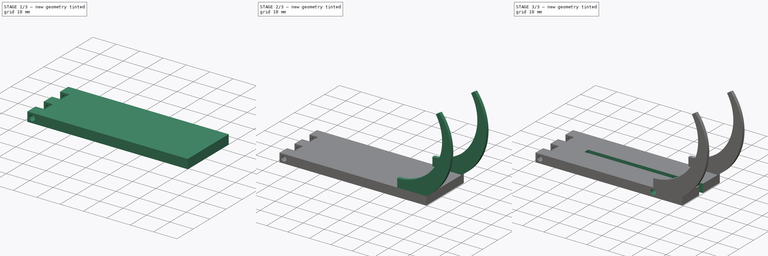
[diagram: build sequence overview — one tinted view per stage of 3, left to right]
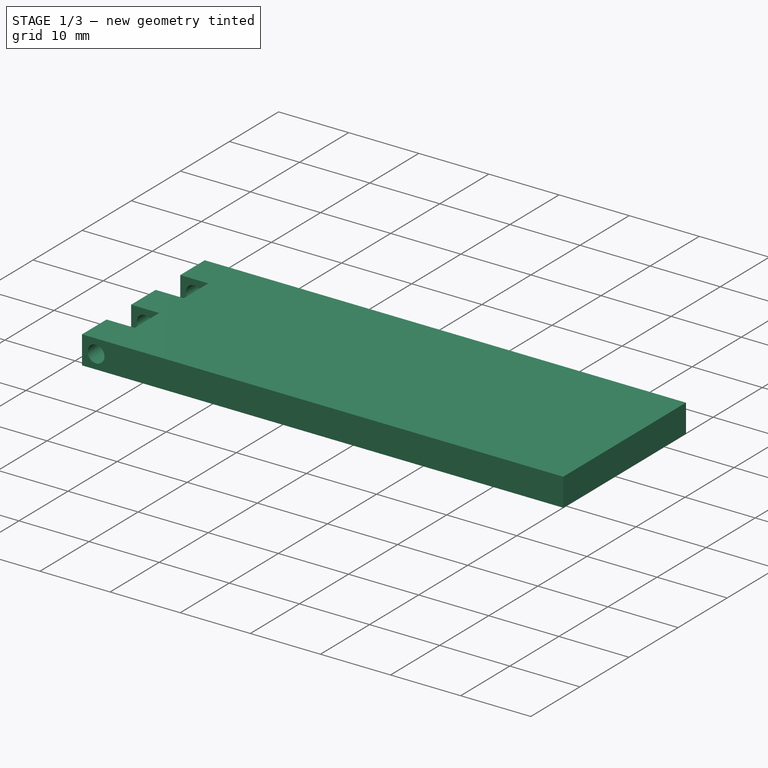
[diagram: stage 1 of 3 — iso view after this stage's code; geometry added in this stage tinted green]
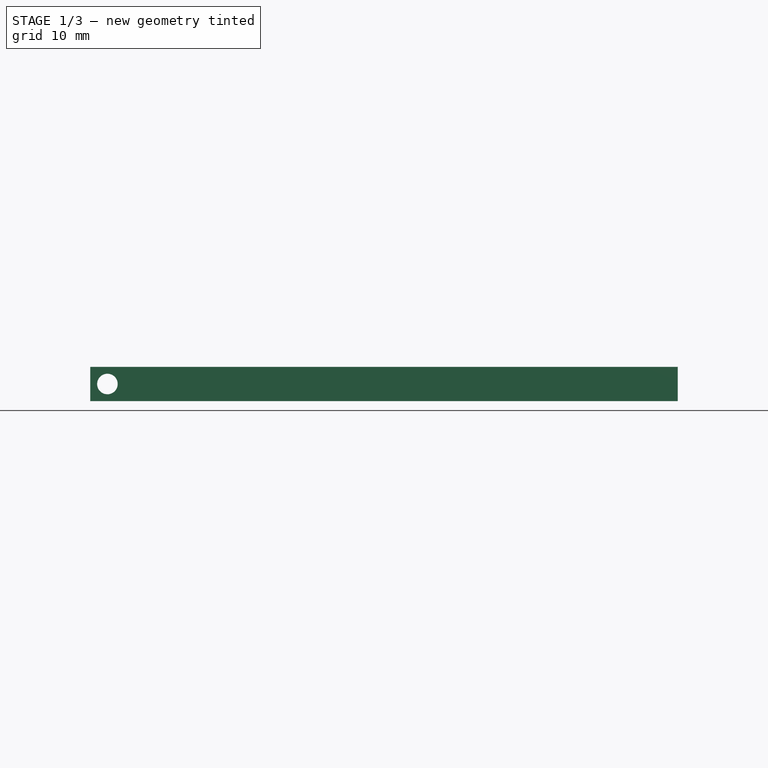
[diagram: stage 1 of 3 — front view after this stage's code; geometry added in this stage tinted green]
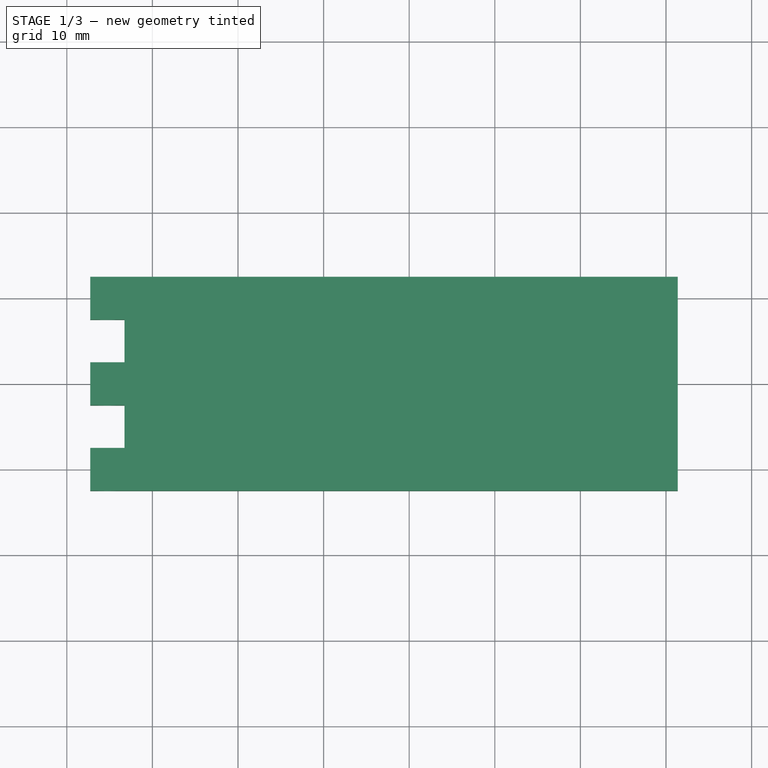
[diagram: stage 1 of 3 — top view after this stage's code; geometry added in this stage tinted green]
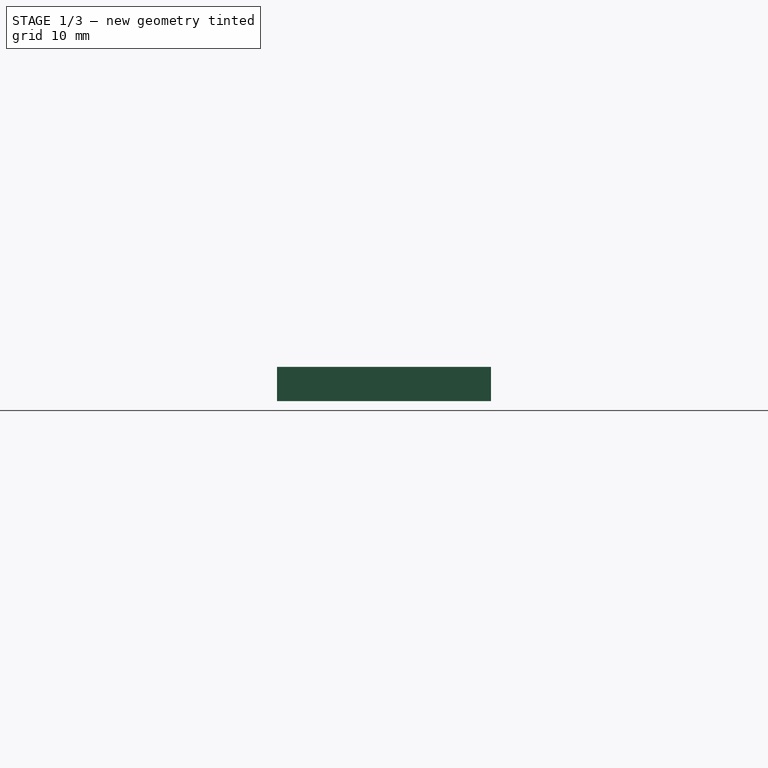
[diagram: stage 1 of 3 — right view after this stage's code; geometry added in this stage tinted green]
FCSTD DOCUMENT  (FreeCAD 0.16R6348 (Git))
Label: MainArm
License: All rights reserved
LicenseURL: http://en.wikipedia.org/wiki/All_rights_reserved
objects: Sketcher::SketchObject×5, PartDesign::Pocket×3, PartDesign::Pad×2, PartDesign::LinearPattern×1, Raytracing::LuxFeature×1, Raytracing::LuxProject×1
note: 16 computed .brp shape members not serialized (recipe doc carries the construction recipe); baked Part::Feature solids carry a one-line shape summary decoded from their .brp

FEATURE [Sketcher::SketchObject] Sketch
  sketch-geometry (12):
    g0: LineSegment StartX=41.3695 StartY=12.5 StartZ=0 EndX=-27.2564 EndY=12.5 EndZ=0
    g1: LineSegment StartX=-27.2564 StartY=12.5 StartZ=0 EndX=-27.2564 EndY=7.5 EndZ=0
    g2: LineSegment StartX=-27.2564 StartY=7.5 StartZ=0 EndX=-23.2564 EndY=7.5 EndZ=0
    g3: LineSegment StartX=-23.2564 StartY=7.5 StartZ=0 EndX=-23.2564 EndY=2.5 EndZ=0
    g4: LineSegment StartX=-23.2564 StartY=2.5 StartZ=0 EndX=-27.2564 EndY=2.5 EndZ=0
    g5: LineSegment StartX=-27.2564 StartY=2.5 StartZ=0 EndX=-27.2564 EndY=-2.5 EndZ=0
    g6: LineSegment StartX=-27.2564 StartY=-2.5 StartZ=0 EndX=-23.2564 EndY=-2.5 EndZ=0
    g7: LineSegment StartX=-23.2564 StartY=-2.5 StartZ=0 EndX=-23.2564 EndY=-7.5 EndZ=0
    g8: LineSegment StartX=-23.2564 StartY=-7.5 StartZ=0 EndX=-27.2564 EndY=-7.5 EndZ=0
    g9: LineSegment StartX=-27.2564 StartY=-7.5 StartZ=0 EndX=-27.2564 EndY=-12.5 EndZ=0
    g10: LineSegment StartX=-27.2564 StartY=-12.5 StartZ=0 EndX=41.3695 EndY=-12.5 EndZ=0
    g11: LineSegment StartX=41.3695 StartY=12.5 StartZ=0 EndX=41.3695 EndY=-12.5 EndZ=0
  constraints (34):
    c: Horizontal(g0)
    c: Coincident(g0,g1)
    c: Vertical(g1)
    c: Coincident(g1,g2)
    c: Horizontal(g2)
    c: Coincident(g2,g3)
    c: Vertical(g3)
    c: Coincident(g3,g4)
    c: Horizontal(g4)
    c: Coincident(g4,g5)
    c: Vertical(g5)
    c: Coincident(g5,g6)
    c: Horizontal(g6)
    c: Coincident(g6,g7)
    c: Vertical(g7)
    c: Coincident(g7,g8)
    c: Horizontal(g8)
    c: Coincident(g8,g9)
    c: Vertical(g9)
    c: Coincident(g9,g10)
    c: Horizontal(g10)
    c: Equal(g7,g5)
    c: Equal(g5,g9)
    c: Equal(g9,g3)
    c: Equal(g3,g1)
    c: Equal(g8,g6)
    c: Equal(g6,g4)
    c: Equal(g4,g2)
    c: DistanceY(g0,g9) = -25
    c: Symmetric(g5,g4,g-1)
    c: Coincident(g11,g0)
    c: Vertical(g11)
    c: Coincident(g10,g11)
    c: DistanceX(g6) = 4
FEATURE [PartDesign::Pad] Pad
  Length = 4
  Length2 = 100
  Sketch = -> Sketch
  Type = 0
FEATURE [Sketcher::SketchObject] Sketch001
  ExternalGeometry = -> [Pad]
  Placement = pos=(0,-12.5,0) rot=(1,0,0;1.5708rad)
  Support = -> Pad [Face11]
  sketch-geometry (1):
    g0: Circle CenterX=-25.2564 CenterY=2 CenterZ=0 NormalX=0 NormalY=0 NormalZ=1 Radius=1.2
  constraints (3):
    c: Radius(g0) = 1.2
    c: DistanceY(g-5,g0) = 2
    c: DistanceX(g-5,g0) = 2
FEATURE [PartDesign::Pocket] Pocket
  Length = 5
  Sketch = -> Sketch001
  Type = 1
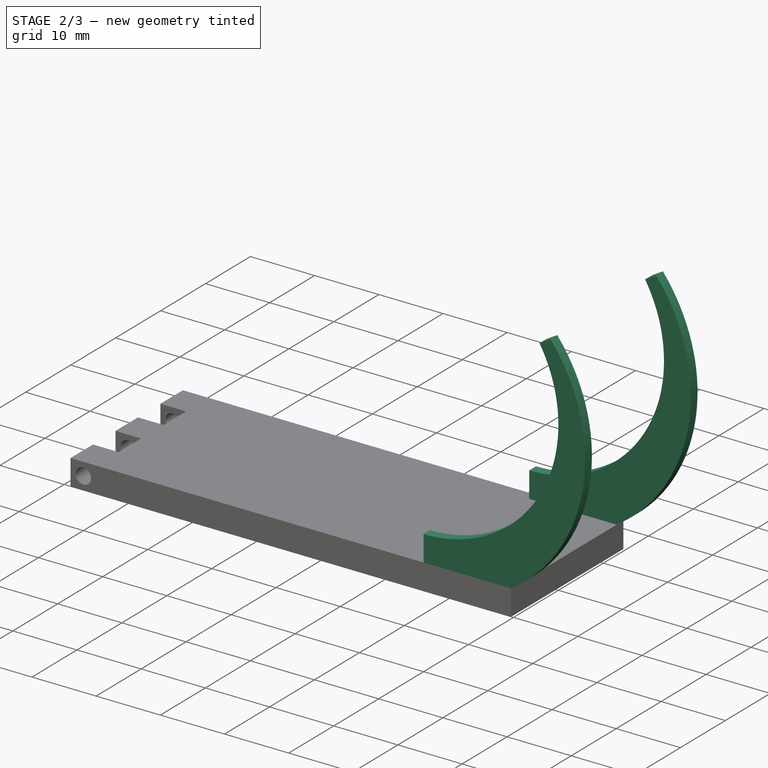
[diagram: stage 2 of 3 — iso view after this stage's code; geometry added in this stage tinted green]
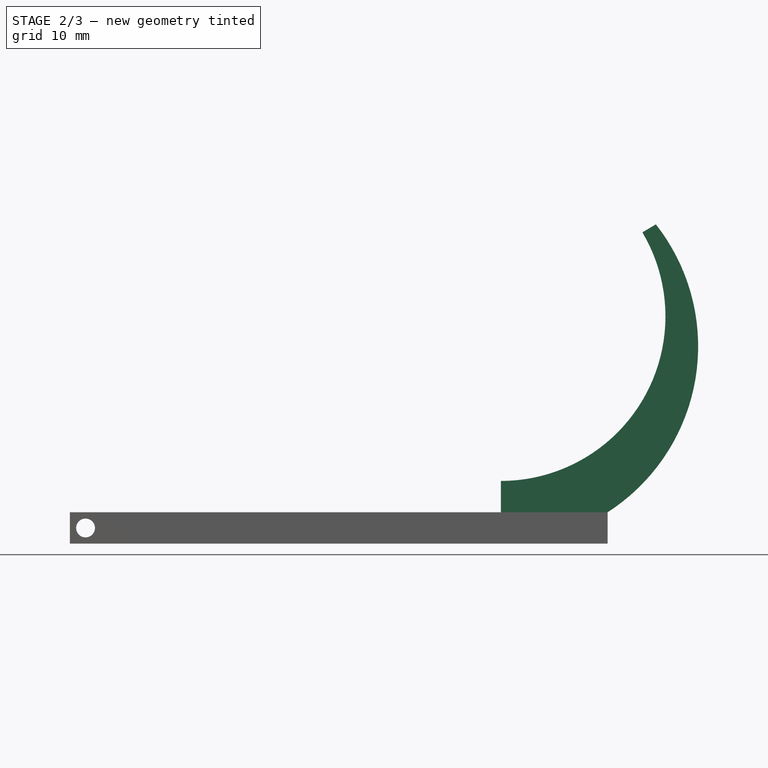
[diagram: stage 2 of 3 — front view after this stage's code; geometry added in this stage tinted green]
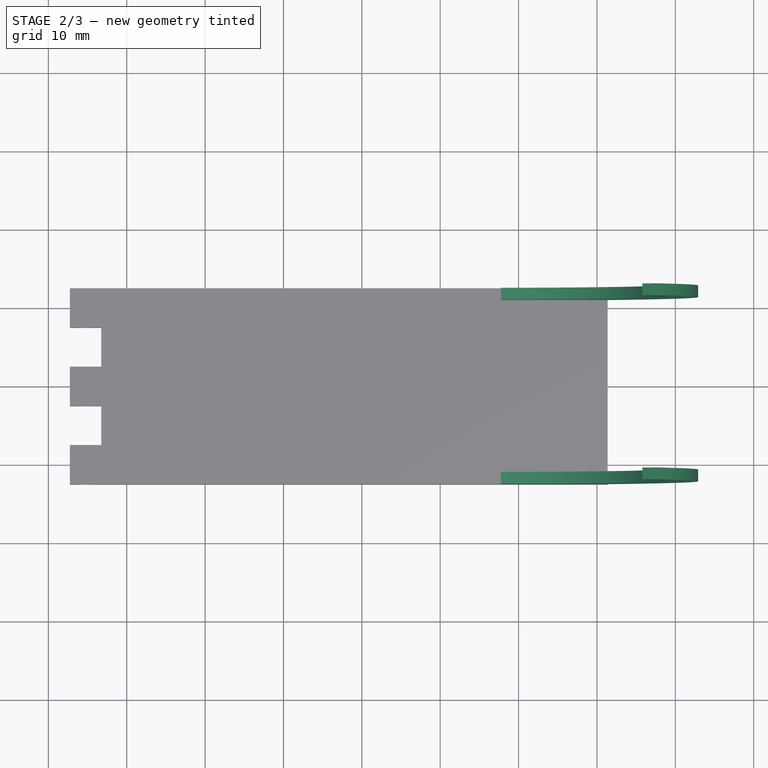
[diagram: stage 2 of 3 — top view after this stage's code; geometry added in this stage tinted green]
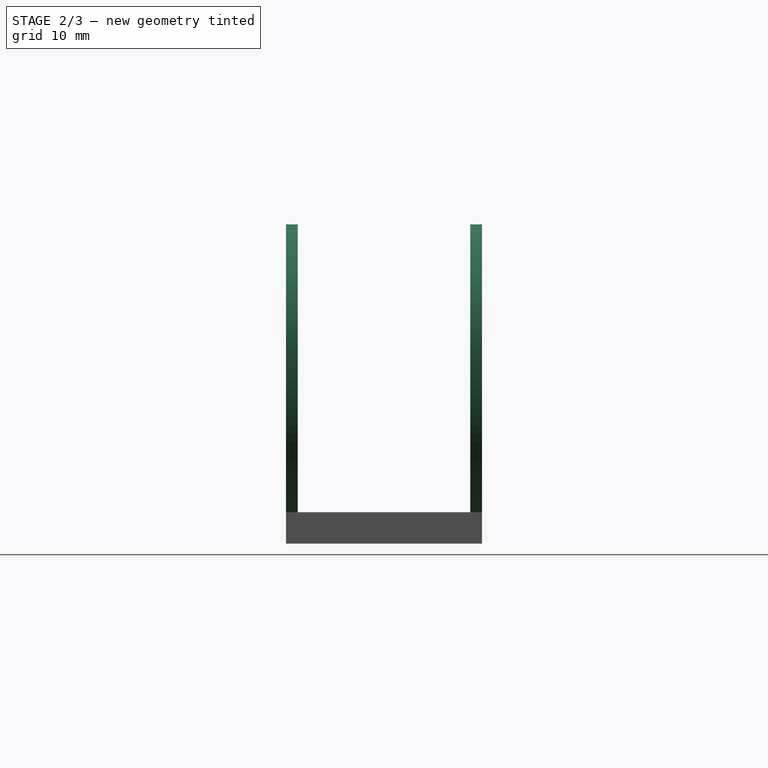
[diagram: stage 2 of 3 — right view after this stage's code; geometry added in this stage tinted green]
FEATURE [Sketcher::SketchObject] Sketch002
  ExternalGeometry = -> [Pocket]
  Placement = pos=(0,-12.5,0) rot=(1,0,0;1.5708rad)
  Support = -> Pocket [Face7]
  sketch-geometry (6):
    g0: LineSegment [constr] StartX=27.7436 StartY=51.229 StartZ=0 EndX=27.7436 EndY=4 EndZ=0
    g1: GeomPoint [constr] X=27.7436 Y=29 Z=0
    g2: ArcOfCircle CenterX=27.7436 CenterY=29 CenterZ=0 NormalX=0 NormalY=0 NormalZ=1 Radius=21 StartAngle=4.71239 EndAngle=6.81909
    g3: ArcOfCircle CenterX=27.7436 CenterY=25.1712 CenterZ=0 NormalX=0 NormalY=0 NormalZ=1 Radius=25.1712 StartAngle=4.71239 EndAngle=6.95025
    g4: LineSegment StartX=47.5193 StartY=40.7441 StartZ=0 EndX=45.7996 EndY=39.7229 EndZ=0
    g5: LineSegment StartX=27.7436 StartY=8 StartZ=0 EndX=27.7436 EndY=0 EndZ=0
  constraints (17):
    c: Vertical(g0)
    c: PointOnObject(g0,g-3)
    c: PointOnObject(g1,g0)
    c: DistanceY(g1,g0) = -25
    c: Coincident(g2,g1)
    c: Radius(g2) = 21
    c: PointOnObject(g3,g0)
    c: PointOnObject(g3,g-5)
    c: DistanceX(g3,g0) = 0
    c: PointOnObject(g2,g0)
    c: Coincident(g4,g3)
    c: Coincident(g4,g2)
    c: Coincident(g5,g2)
    c: Coincident(g5,g3)
    c: DistanceX(g-5,g0) = 55
    c: PointOnObject(g1,g4)
    c: Distance(g4) = 2
FEATURE [PartDesign::Pad] Pad001
  Length = 1.5
  Length2 = 100
  Reversed = true
  Sketch = -> Sketch002
  Type = 0
FEATURE [PartDesign::LinearPattern] LinearPattern
  Direction = -> Pad001 [Edge25]
  Length = 23.5
  Occurrences = 2
  Originals = -> [Pad001]
  Reversed = true
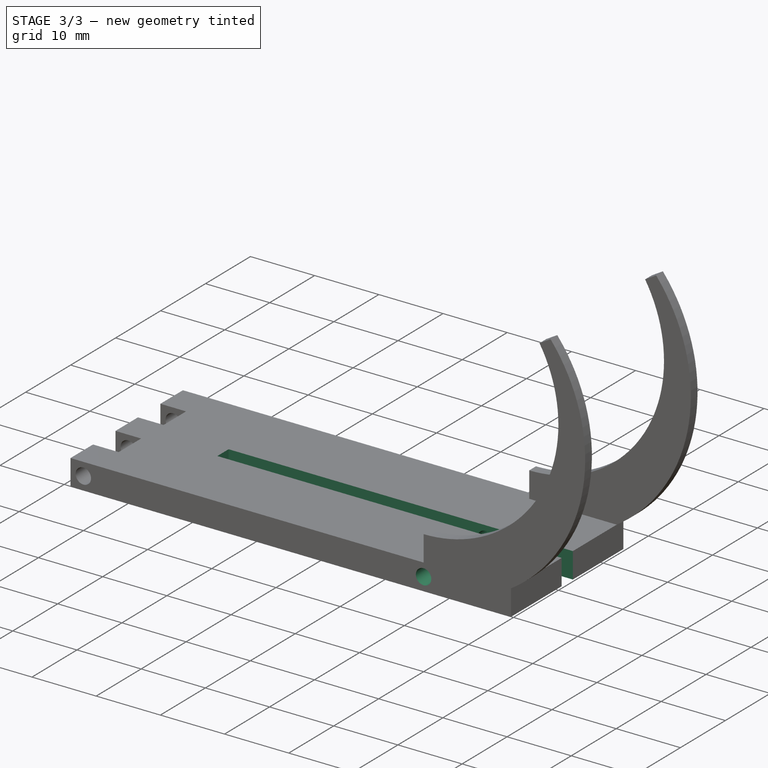
[diagram: stage 3 of 3 — iso view after this stage's code; geometry added in this stage tinted green]
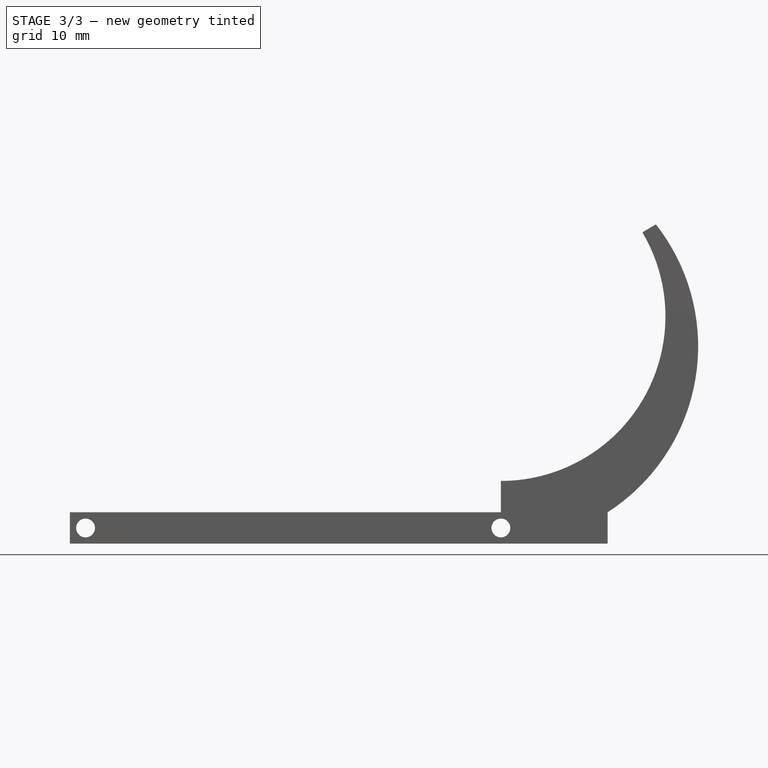
[diagram: stage 3 of 3 — front view after this stage's code; geometry added in this stage tinted green]
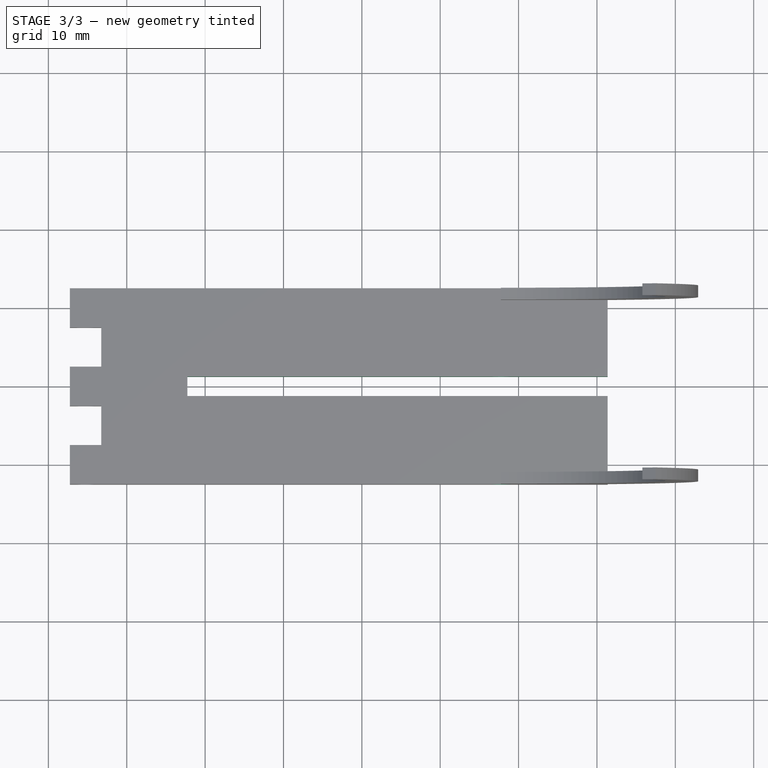
[diagram: stage 3 of 3 — top view after this stage's code; geometry added in this stage tinted green]
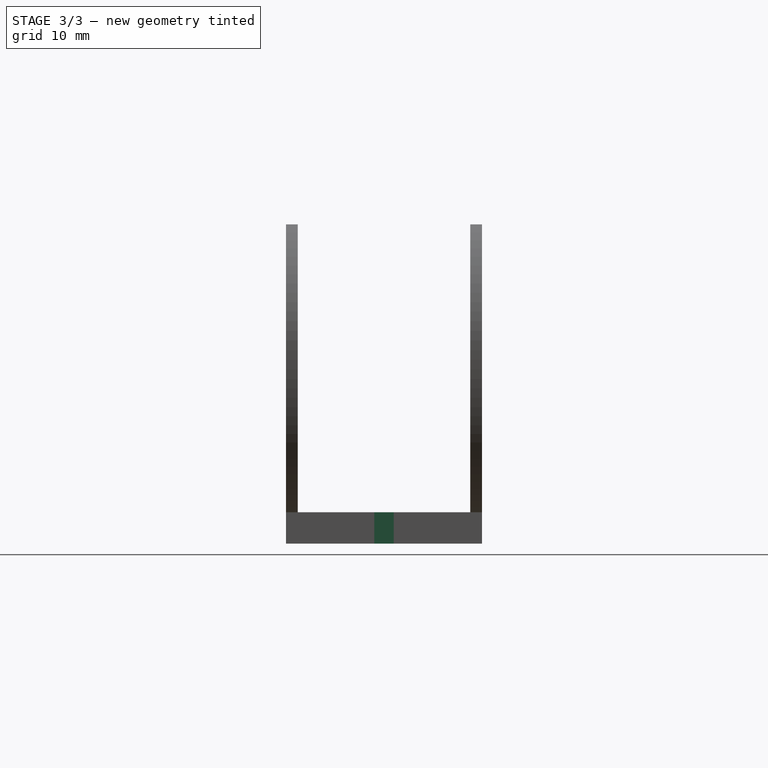
[diagram: stage 3 of 3 — right view after this stage's code; geometry added in this stage tinted green]
FEATURE [Sketcher::SketchObject] Sketch003
  ExternalGeometry = -> [LinearPattern]
  Placement = pos=(0,12.5,0) rot=(0,0.707107,0.707107;3.14159rad)
  Support = -> LinearPattern [Face8]
  sketch-geometry (1):
    g0: Circle CenterX=-27.7436 CenterY=2 CenterZ=0 NormalX=0 NormalY=0 NormalZ=1 Radius=1.2
  constraints (2):
    c: Radius(g0) = 1.2
    c: Symmetric(g-4,g-4,g0)
FEATURE [PartDesign::Pocket] Pocket001
  Length = 5
  Sketch = -> Sketch003
  Type = 1
FEATURE [Sketcher::SketchObject] Sketch004
  ExternalGeometry = -> [Pocket001]
  Placement = pos=(0,0,0) rot=(1,0,0;3.14159rad)
  Support = -> Pocket001 [Face4]
  sketch-geometry (4):
    g0: LineSegment StartX=-12.2564 StartY=-1.25 StartZ=0 EndX=45 EndY=-1.25 EndZ=0
    g1: LineSegment StartX=45 StartY=-1.25 StartZ=0 EndX=45 EndY=1.25 EndZ=0
    g2: LineSegment StartX=45 StartY=1.25 StartZ=0 EndX=-12.2564 EndY=1.25 EndZ=0
    g3: LineSegment StartX=-12.2564 StartY=1.25 StartZ=0 EndX=-12.2564 EndY=-1.25 EndZ=0
  constraints (11):
    c: Coincident(g0,g1)
    c: Coincident(g1,g2)
    c: Coincident(g2,g3)
    c: Coincident(g3,g0)
    c: Horizontal(g0)
    c: Horizontal(g2)
    c: Vertical(g1)
    c: Vertical(g3)
    c: Symmetric(g0,g2,g-1)
    c: DistanceX(g-3,g2) = -40
    c: Distance(g3) = 2.5
FEATURE [PartDesign::Pocket] Pocket002
  Length = 5
  Sketch = -> Sketch004
  Type = 1
FEATURE [Raytracing::LuxFeature] Pocket002_View
  Result = <blob: 61235 chars omitted>
  Source = -> Pocket002
  Transparency = 0
FEATURE [Raytracing::LuxProject] LuxProject
  Camera = # declares positon and view direction\n# Generated by FreeCAD (http://www.freecadweb.org/)\nLookAt -45.6175 -83.3615 81.5205 18.2792 13.1168 9.12703 0.0610319 0.572891 0.817356
  Group = -> [Pocket002_View]
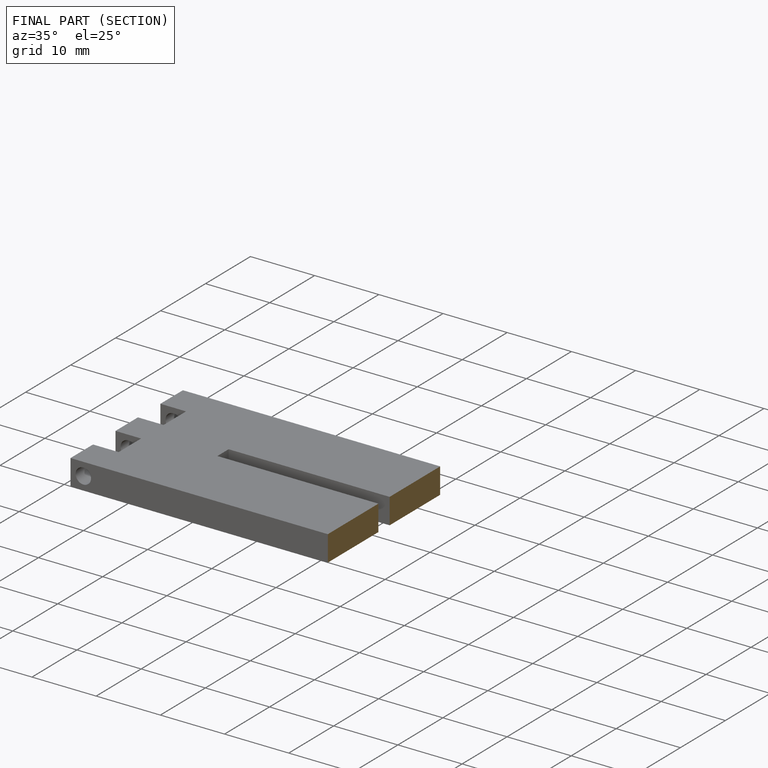
[diagram: finished part — half-section view (interior)]
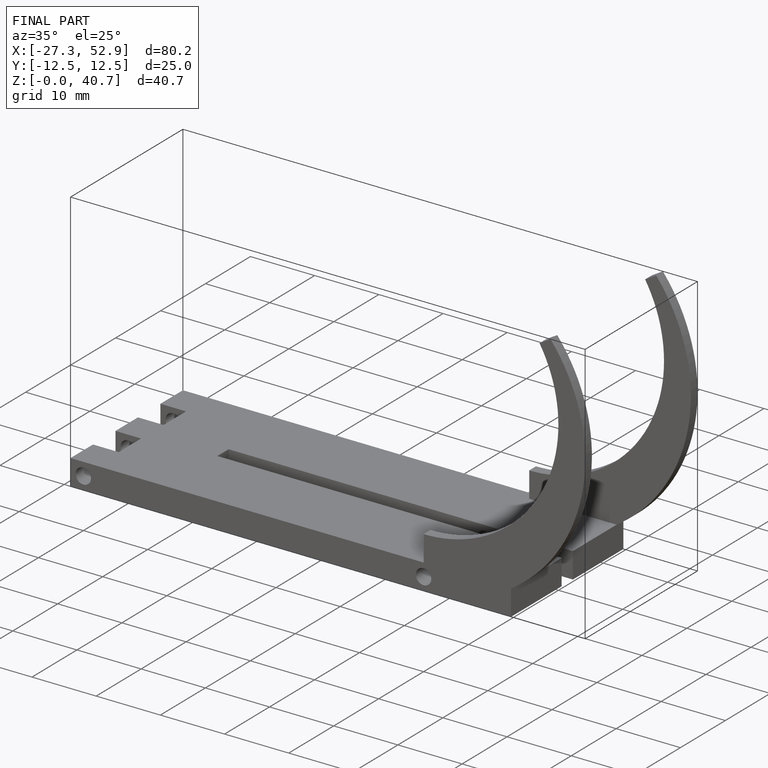
[diagram: finished part — iso view with bounding-box wireframe]
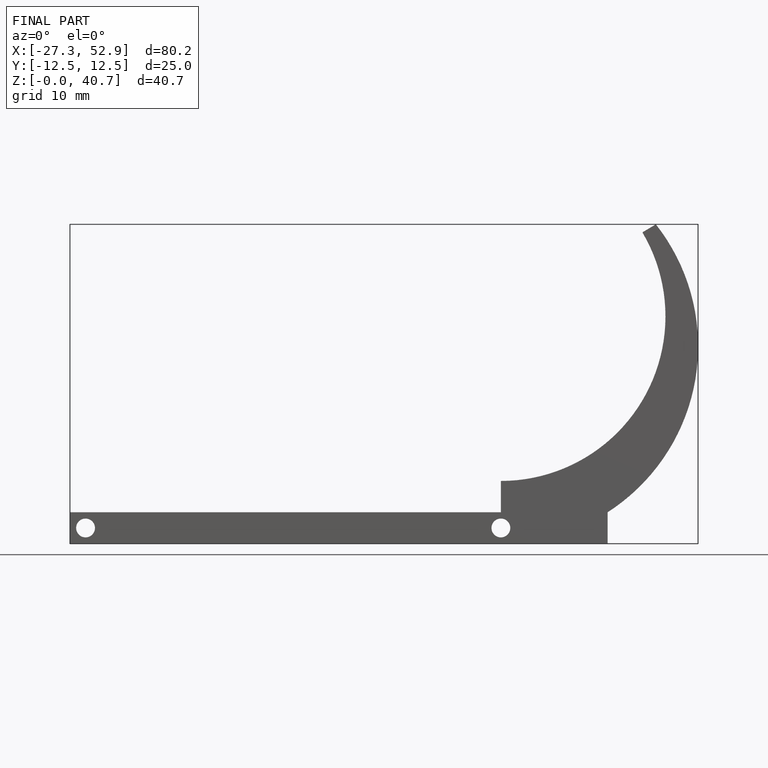
[diagram: finished part — front view with bounding-box wireframe]
